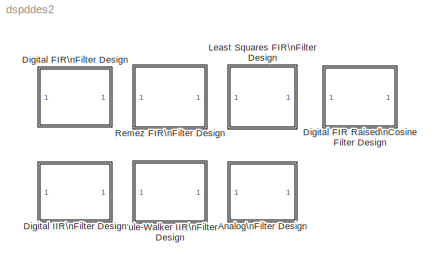
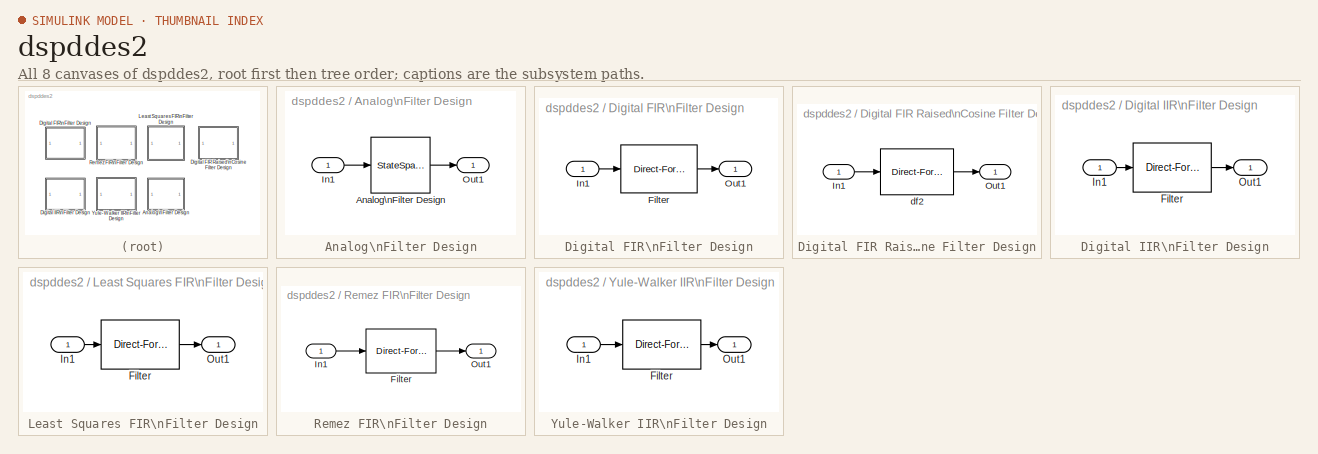
[diagram: thumbnail index - all 8 canvases of the model, root first then tree order]
MODEL dspddes2
KIND library
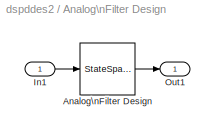
BLOCK [SubSystem] Analog\nFilter Design
  MaskCallbackString = dspblkanalog|dspblkanalog|||||
  MaskDescription = Design one of several standard analog filters, implemented in state-space form.
  MaskDisplay = plot(w,h); text(.05,.9,str);\n
  MaskEnableString = on,on,on,on,on,on,on
  MaskHelp = web(dspbhelp);
  MaskIconFrame = on
  MaskIconOpaque = on
  MaskIconRotate = none
  MaskIconUnits = normalized
  MaskInitialization = [a,b,c,d,h,w,str]=dspblkanalog('design', method,filttype,N,Wlo,Whi,Rp,Rs);\n
  MaskPromptString = Design method:|Filter type:|Filter order:|Passband edge frequency (rads/sec):|Should not be visible!|Passband ripple in dB:|Stopband attenuation in dB:
  MaskSelfModifiable = on
  MaskStyleString = popup(Butterworth|Chebyshev I|Chebyshev II|Elliptic),popup(Lowpass|Highpass|Bandpass|Bandstop),edit,edit,edit,edit,edit
  MaskTunableValueString = on,on,off,on,on,on,on
  MaskType = Analog Filter Design
  MaskValueString = Butterworth|Lowpass|8|30|80|2|40
  MaskVariables = method=&1;filttype=&2;N=@3;Wlo=@4;Whi=@5;Rp=@6;Rs=@7;
  MaskVisibilityString = on,on,on,on,off,off,off
  Ports = [1, 1, 0, 0, 0]
  ShowPortLabels = on
BLOCK [StateSpace] Analog\nFilter Design/Analog\nFilter Design
  A = a
  B = b
  C = c
  D = d
  X0 = 0
BLOCK [Inport] Analog\nFilter Design/In1
  DataType = auto
  Interpolate = on
  Port = 1
  PortWidth = -1
  SampleTime = -1
  SignalType = auto
BLOCK [Outport] Analog\nFilter Design/Out1
  InitialOutput = 0
  OutputWhenDisabled = held
  Port = 1
BLOCK [SubSystem] Digital FIR Raised\nCosine Filter Design
  MaskCallbackString = |||dspblkfirrcos|||dspblkfirrcos||||dspblkfirrcos|
  MaskDescription = Linear phase digital FIR lowpass raised cosine filter.
  MaskDisplay = plot(w,h);\ntext(.05,.9,str);
  MaskEnableString = on,on,on,on,off,on,on,off,off,on,on,off
  MaskHelp = web(dspbhelp);
  MaskIconFrame = on
  MaskIconOpaque = on
  MaskIconRotate = none
  MaskIconUnits = normalized
  MaskInitialization = [str,h,w,b]= dspblkfirrcos('design',filter_order,upper_cutoff_freq,rolloff_type,transition_bw,rolloff_factor, window_type, Rs, enable_sqrt_design, frame_based,num_chans, Kbeta);\ndspblkfirrcos('update');\n
  MaskPromptString = Filter order:|Upper cutoff frequency (0 to 1):|Square-root raised cosine filter|Design method:|Transition bandwidth (0 < Df < 1):|Rolloff factor (0 to 1):|Window type:|Stopband attenuation in dB:|Beta:|Initial conditions:|Frame-based inputs|Number of channels:
  MaskSelfModifiable = on
  MaskStyleString = edit,edit,checkbox,popup(Transition bandwidth|Rolloff factor),edit,edit,popup(Bartlett|Blackman|Boxcar|Chebyshev|Hamming|Hann|Hanning|Kaiser|Triangular),edit,edit,edit,checkbox,edit
  MaskTunableValueString = off,on,on,on,on,on,on,on,on,on,off,off
  MaskType = Digital FIR Raised Cosine Filter Design
  MaskValueString = 63|0.5|on|Rolloff factor|0.4|0.6|Boxcar|5|10|0|off|1
  MaskVariables = filter_order=@1;upper_cutoff_freq=@2;enable_sqrt_design=@3;rolloff_type=@4;transition_bw=@5;rolloff_factor=@6;window_type=@7;Rs=@8;Kbeta=@9;InitCond=@10;frame_based=@11;num_chans=@12;
  MaskVisibilityString = on,on,on,on,off,on,on,on,on,on,on,on
  Ports = [1, 1, 0, 0, 0]
  ShowPortLabels = on
BLOCK [Inport] Digital FIR Raised\nCosine Filter Design/In1
  DataType = auto
  Interpolate = on
  Port = 1
  PortWidth = -1
  SampleTime = -1
  SignalType = auto
BLOCK [Outport] Digital FIR Raised\nCosine Filter Design/Out1
  InitialOutput = []
  OutputWhenDisabled = held
  Port = 1
BLOCK [Reference] Digital FIR Raised\nCosine Filter Design/df2  REF=dsparch2/Direct-Form II\nTranspose Filter
  Ports = [1, 1, 0, 0, 0]
  SourceBlock = dsparch2/Direct-Form II\nTranspose Filter
  SourceType = Direct-Form II Transpose Filter
  den = 1
  frame = off
  ic = InitCond
  num = b
  numCHANS = num_chans
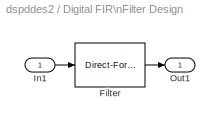
BLOCK [SubSystem] Digital FIR\nFilter Design
  MaskCallbackString = dspblkfir||||||||dspblkfir|||dspblkfir|
  MaskDescription = Implements various window-based FIR filter designs using the Signal Processing Toolbox's \"fir1\" and \"fir2\" filter design commands.  The gain at each \"cutoff frequency\" is the average of the gains in the adjacent bands (usually 0.5).
  MaskDisplay = plot(w,h); text(.05,.9,str);\n
  MaskEnableString = on,on,on,on,on,on,on,on,on,off,off,on,off
  MaskHelp = web(dspbhelp);
  MaskIconFrame = on
  MaskIconOpaque = on
  MaskIconRotate = none
  MaskIconUnits = normalized
  MaskInitialization = [b,h,w,str]=dspblkfir('design',filttype,N,Wlo,Whi,W0,g0,W1,gains,wintype,Rs, Kbeta);\nnumChans = dspblkfir('update', numChans);
  MaskPromptString = Filter type:|Filter order:|Cutoff frequency (0 to 1):|Upper cutoff frequency:|Cutoff frequency vector (0 < f < 1):|Gain in the first band:|Frequency vector (including 0 and 1):|Gains at these frequencies:|Window type:|Stopband attenuation in dB:|Beta:|Frame-based inputs|Number of channels:
  MaskSelfModifiable = on
  MaskStyleString = popup(Lowpass|Highpass|Bandpass|Bandstop|Multiband|Arbitrary Shape (fir2)),edit,edit,edit,edit,popup(0|1),edit,edit,popup(Bartlett|Blackman|Boxcar|Chebyshev|Hamming|Hann|Hanning|Kaiser|Triangular),edit,edit,checkbox,edit
  MaskTunableValueString = on,off,on,on,on,on,on,on,on,on,on,off,off
  MaskType = Digital FIR Filter Design
  MaskValueString = Lowpass|22|0.4|0.6|[.2 .5 .8]|1|[0 .2 .3 .6 .8 1]|[1 .5 0 0 1 .5]|Hamming|10|5|off|1
  MaskVariables = filttype=&1;N=@2;Wlo=@3;Whi=@4;W0=@5;g0=@6;W1=@7;gains=@8;wintype=&9;Rs=@10;Kbeta=@11;frame=&12;numChans=@13;
  MaskVisibilityString = on,on,on,off,off,off,off,off,on,on,on,on,on
  Ports = [1, 1, 0, 0, 0]
  ShowPortLabels = on
BLOCK [Reference] Digital FIR\nFilter Design/Filter  REF=dsparch2/Direct-Form II\nTranspose Filter
  Ports = [1, 1, 0, 0, 0]
  SourceBlock = dsparch2/Direct-Form II\nTranspose Filter
  SourceType = Direct-Form II Transpose Filter
  den = 1
  frame = off
  ic = 0
  num = b
  numCHANS = numChans
BLOCK [Inport] Digital FIR\nFilter Design/In1
  DataType = auto
  Interpolate = on
  Port = 1
  PortWidth = -1
  SampleTime = -1
  SignalType = auto
BLOCK [Outport] Digital FIR\nFilter Design/Out1
  InitialOutput = 0
  OutputWhenDisabled = held
  Port = 1
BLOCK [SubSystem] Digital IIR\nFilter Design
  MaskCallbackString = dspblkiir|dspblkiir||||||dspblkiir|
  MaskDescription = Design one of several standard IIR filters, implemented in direct form.
  MaskDisplay = plot(w,h); text(.05,.9,str);\n
  MaskEnableString = on,on,on,on,on,on,on,on,off
  MaskHelp = web(dspbhelp);
  MaskIconFrame = on
  MaskIconOpaque = on
  MaskIconRotate = none
  MaskIconUnits = normalized
  MaskInitialization = [b,a,h,w,str] = dspblkiir('design',method,filttype,N,...\n                                              Wlo,Whi,Rp,Rs);\nnumCHANS = dspblkiir('update',  numCHANS);
  MaskPromptString = Design method:|Filter type:|Filter order:|Lower passband edge frequency (0 to 1):|Upper passband edge frequency:|Passband ripple in dB:|Stopband attenuation in dB:|Frame-based inputs|Number of channels:
  MaskSelfModifiable = on
  MaskStyleString = popup(Butterworth|Chebyshev I|Chebyshev II|Elliptic),popup(Lowpass|Highpass|Bandpass|Bandstop),edit,edit,edit,edit,edit,checkbox,edit
  MaskTunableValueString = on,on,off,on,on,on,on,off,off
  MaskType = Digital IIR Filter Design
  MaskValueString = Butterworth|Lowpass|4 |0.4|0.6|2|20|off|1
  MaskVariables = method=&1;filttype=&2;N=@3;Wlo=@4;Whi=@5;Rp=@6;Rs=@7;frame=&8;numCHANS=@9;
  MaskVisibilityString = on,on,on,on,on,on,off,on,on
  Ports = [1, 1, 0, 0, 0]
  ShowPortLabels = on
BLOCK [Reference] Digital IIR\nFilter Design/Filter  REF=dsparch2/Direct-Form II\nTranspose Filter
  Ports = [1, 1, 0, 0, 0]
  SourceBlock = dsparch2/Direct-Form II\nTranspose Filter
  SourceType = Direct-Form II Transpose Filter
  den = a
  frame = off
  ic = 0
  num = b
  numCHANS = numCHANS
BLOCK [Inport] Digital IIR\nFilter Design/In1
  DataType = auto
  Interpolate = on
  Port = 1
  PortWidth = -1
  SampleTime = -1
  SignalType = auto
BLOCK [Outport] Digital IIR\nFilter Design/Out1
  InitialOutput = 0
  OutputWhenDisabled = held
  Port = 1
BLOCK [SubSystem] Least Squares FIR\nFilter Design
  MaskCallbackString = |||||dspblkfirls|
  MaskDescription = Least-squares linear phase FIR filter.
  MaskDisplay = plot(w,h); text(.05,.9,str);
  MaskEnableString = on,on,on,on,on,on,off
  MaskHelp = web(dspbhelp);
  MaskIconFrame = on
  MaskIconOpaque = on
  MaskIconRotate = none
  MaskIconUnits = normalized
  MaskInitialization = [b,h,w,str] = dspblkfirls('design',filttype,N,F,A,W);\nnumChans = dspblkfirls('update', numChans);
  MaskPromptString = Filter type:|Filter order:|Band-edge frequency vector (including 0 and 1):|Gains at these frequencies:|Weights (one per band):|Frame-based inputs|Number of channels:
  MaskSelfModifiable = on
  MaskStyleString = popup(Multiband|Hilbert Transformer|Differentiator),edit,edit,edit,edit,checkbox,edit
  MaskTunableValueString = on,off,on,on,on,off,off
  MaskType = Least Squares FIR Filter Design
  MaskValueString = Multiband|12|[0 0.3 0.6 1]|[0 0 1 1]|[1 1]|off|1
  MaskVariables = filttype=@1;N=@2;F=@3;A=@4;W=@5;frame=&6;numChans=@7;
  MaskVisibilityString = on,on,on,on,on,on,on
  Ports = [1, 1, 0, 0, 0]
  ShowPortLabels = on
BLOCK [Reference] Least Squares FIR\nFilter Design/Filter  REF=dsparch2/Direct-Form II\nTranspose Filter
  Ports = [1, 1, 0, 0, 0]
  SourceBlock = dsparch2/Direct-Form II\nTranspose Filter
  SourceType = Direct-Form II Transpose Filter
  den = 1
  frame = off
  ic = 0
  num = b
  numCHANS = numChans
BLOCK [Inport] Least Squares FIR\nFilter Design/In1
  DataType = auto
  Interpolate = on
  Port = 1
  PortWidth = -1
  SampleTime = -1
  SignalType = auto
BLOCK [Outport] Least Squares FIR\nFilter Design/Out1
  InitialOutput = 0
  OutputWhenDisabled = held
  Port = 1
BLOCK [SubSystem] Remez FIR\nFilter Design
  MaskCallbackString = |||||dspblkremez|
  MaskDescription = Parks-McClellan linear phase FIR filter.
  MaskDisplay = plot(w,h); text(.05,.9,str);
  MaskEnableString = on,on,on,on,on,on,off
  MaskHelp = web(dspbhelp);
  MaskIconFrame = on
  MaskIconOpaque = on
  MaskIconRotate = none
  MaskIconUnits = normalized
  MaskInitialization = [b,h,w,str] = dspblkremez('design', filttype,N,F,A,W);\nnumCHANS = dspblkremez('update', numCHANS);\n
  MaskPromptString = Filter type:|Band-edge frequency vector (including 0 and 1):|Gains at these frequencies:|Weights (one per band):|Filter order:|Frame-based inputs|Number of channels:
  MaskSelfModifiable = on
  MaskStyleString = popup(Multiband|Hilbert Transformer|Differentiator),edit,edit,edit,edit,checkbox,edit
  MaskTunableValueString = on,on,on,on,off,off,off
  MaskType = Remez FIR Filter Design
  MaskValueString = Multiband|[0 0.4 0.5 1]|[1 1 0 0]|[1 1]|23|off|1
  MaskVariables = filttype=@1;F=@2;A=@3;W=@4;N=@5;frame=&6;numCHANS=@7;
  MaskVisibilityString = on,on,on,on,on,on,on
  Ports = [1, 1, 0, 0, 0]
  ShowPortLabels = on
BLOCK [Reference] Remez FIR\nFilter Design/Filter  REF=dsparch2/Direct-Form II\nTranspose Filter
  Ports = [1, 1, 0, 0, 0]
  SourceBlock = dsparch2/Direct-Form II\nTranspose Filter
  SourceType = Direct-Form II Transpose Filter
  den = 1
  frame = off
  ic = 0
  num = b
  numCHANS = numCHANS
BLOCK [Inport] Remez FIR\nFilter Design/In1
  DataType = auto
  Interpolate = on
  Port = 1
  PortWidth = -1
  SampleTime = -1
  SignalType = auto
BLOCK [Outport] Remez FIR\nFilter Design/Out1
  InitialOutput = 0
  OutputWhenDisabled = held
  Port = 1
BLOCK [SubSystem] Yule-Walker IIR\nFilter Design
  MaskCallbackString = |||dspblkyule|
  MaskDescription = Yule-Walker IIR filter design.
  MaskDisplay = plot(w,h); text(.05,.9,str);
  MaskEnableString = on,on,on,on,off
  MaskHelp = web(dspbhelp);
  MaskIconFrame = on
  MaskIconOpaque = on
  MaskIconRotate = none
  MaskIconUnits = normalized
  MaskInitialization = [b,a,h,w,str] = dspblkyule('design', N,F,A);\nnumCHANS = dspblkyule('update', numCHANS);
  MaskPromptString = Filter order:|Band-edge frequency vector (including 0 and 1):|Magnitudes at these frequencies:|Frame-based inputs|Number of channels:
  MaskSelfModifiable = on
  MaskStyleString = edit,edit,edit,checkbox,edit
  MaskTunableValueString = off,on,on,off,off
  MaskType = Yule-Walker IIR Filter Design
  MaskValueString = 8|[0 .4 .6 1]|[1 1 0 0]|off|1
  MaskVariables = N=@1;F=@2;A=@3;frame=&4;numCHANS=@5;
  MaskVisibilityString = on,on,on,on,on
  Ports = [1, 1, 0, 0, 0]
  ShowPortLabels = on
BLOCK [Reference] Yule-Walker IIR\nFilter Design/Filter  REF=dsparch2/Direct-Form II\nTranspose Filter
  Ports = [1, 1, 0, 0, 0]
  SourceBlock = dsparch2/Direct-Form II\nTranspose Filter
  SourceType = Direct-Form II Transpose Filter
  den = a
  frame = off
  ic = 0
  num = b
  numCHANS = numCHANS
BLOCK [Inport] Yule-Walker IIR\nFilter Design/In1
  DataType = auto
  Interpolate = on
  Port = 1
  PortWidth = -1
  SampleTime = -1
  SignalType = auto
BLOCK [Outport] Yule-Walker IIR\nFilter Design/Out1
  InitialOutput = 0
  OutputWhenDisabled = held
  Port = 1
LINE Analog\nFilter Design/Analog\nFilter Design:1 -> Analog\nFilter Design/Out1:1
LINE Analog\nFilter Design/In1:1 -> Analog\nFilter Design/Analog\nFilter Design:1
LINE Digital FIR Raised\nCosine Filter Design/In1:1 -> Digital FIR Raised\nCosine Filter Design/df2:1
LINE Digital FIR Raised\nCosine Filter Design/df2:1 -> Digital FIR Raised\nCosine Filter Design/Out1:1
LINE Digital FIR\nFilter Design/Filter:1 -> Digital FIR\nFilter Design/Out1:1
LINE Digital FIR\nFilter Design/In1:1 -> Digital FIR\nFilter Design/Filter:1
LINE Digital IIR\nFilter Design/Filter:1 -> Digital IIR\nFilter Design/Out1:1
LINE Digital IIR\nFilter Design/In1:1 -> Digital IIR\nFilter Design/Filter:1
LINE Least Squares FIR\nFilter Design/Filter:1 -> Least Squares FIR\nFilter Design/Out1:1
LINE Least Squares FIR\nFilter Design/In1:1 -> Least Squares FIR\nFilter Design/Filter:1
LINE Remez FIR\nFilter Design/Filter:1 -> Remez FIR\nFilter Design/Out1:1
LINE Remez FIR\nFilter Design/In1:1 -> Remez FIR\nFilter Design/Filter:1
LINE Yule-Walker IIR\nFilter Design/Filter:1 -> Yule-Walker IIR\nFilter Design/Out1:1
LINE Yule-Walker IIR\nFilter Design/In1:1 -> Yule-Walker IIR\nFilter Design/Filter:1
